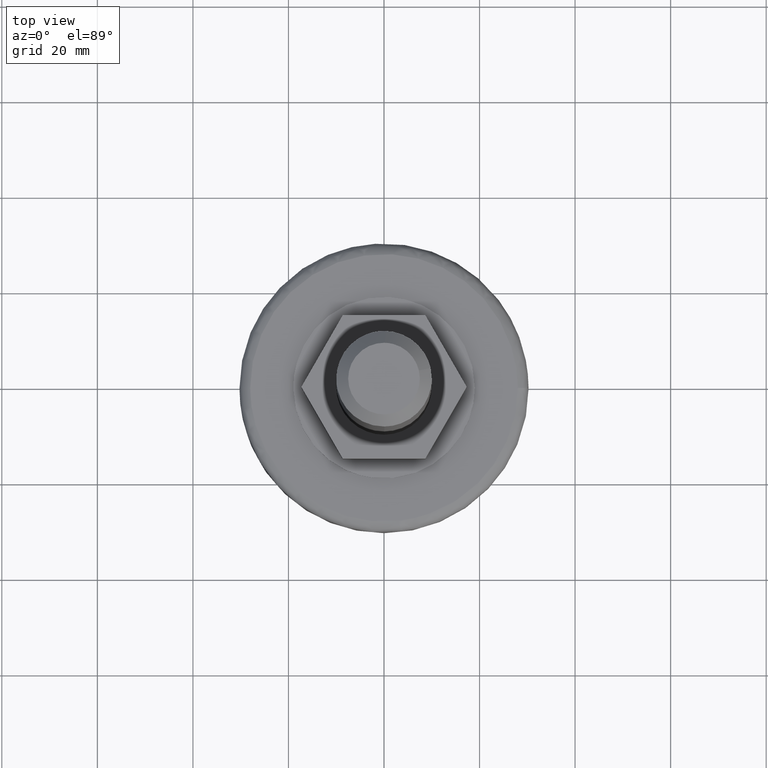
[diagram: clean part render]
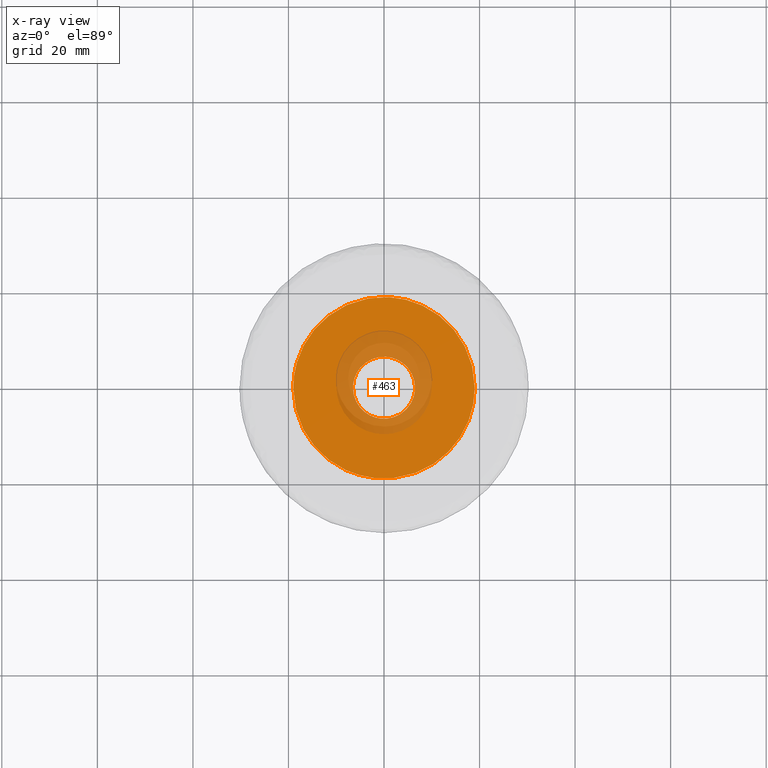
[diagram: x-ray — body ghosted, one internal face saturated and labeled with its STEP entity id]
A machine part, top view, then the same camera in x-ray: the body is ghosted and one INTERNAL B-rep face — a face not visible from any outside direction — is saturated and labeled: STEP entity #463.
In plain terms, the highlighted face is a freeform B-spline surface patch.
Its self-contained STEP definition (entity closure, byte-faithful):
#89=CARTESIAN_POINT('',(-2.242622214212358,-18.867184358125940,16.0));
#90=VERTEX_POINT('',#89);
#96=CARTESIAN_POINT('',(19.0,0.0,16.0));
#97=VERTEX_POINT('',#96);
#98=CARTESIAN_POINT('',(-2.242622214212358,-18.867184358125943,15.999999999999996));
#99=CARTESIAN_POINT('',(-1.125244001959050,-19.0,16.000000000000004));
#100=CARTESIAN_POINT('',(0.0,-19.0,16.0));
#101=CARTESIAN_POINT('',(18.999999999999993,-18.999999999999993,15.999999999999998));
#102=CARTESIAN_POINT('',(19.0,0.0,16.0));
#110=(BOUNDED_CURVE()B_SPLINE_CURVE(2,(#98,#99,#100,#101,#102),.UNSPECIFIED.,.F.,.U.)B_SPLINE_CURVE_WITH_KNOTS((3,2,3),(0.229562726514391,0.250000000000000,0.500000000000000),.UNSPECIFIED.)CURVE()GEOMETRIC_REPRESENTATION_ITEM()RATIONAL_B_SPLINE_CURVE((0.956027250076383,0.976056244740117,1.0,0.707106781186548,1.0))REPRESENTATION_ITEM(''));
#111=EDGE_CURVE('',#90,#97,#110,.T.);
#113=CARTESIAN_POINT('',(1.159886936886149,18.964563329863129,16.0));
#114=VERTEX_POINT('',#113);
#115=CARTESIAN_POINT('',(19.0,0.0,16.0));
#116=CARTESIAN_POINT('',(18.999999999999993,17.873448615860308,15.999999999999998));
#117=CARTESIAN_POINT('',(1.159886936886149,18.964563329863129,15.999999999999996));
#125=(BOUNDED_CURVE()B_SPLINE_CURVE(2,(#115,#116,#117),.UNSPECIFIED.,.F.,.U.)B_SPLINE_CURVE_WITH_KNOTS((3,3),(0.500000000000000,0.739333283544760),.UNSPECIFIED.)CURVE()GEOMETRIC_REPRESENTATION_ITEM()RATIONAL_B_SPLINE_CURVE((1.0,0.719603616853531,0.976072730287213))REPRESENTATION_ITEM(''));
#126=EDGE_CURVE('',#97,#114,#125,.T.);
#204=CARTESIAN_POINT('',(-19.0,0.0,16.0));
#205=VERTEX_POINT('',#204);
#206=CARTESIAN_POINT('',(1.159886936886149,18.964563329863129,15.999999999999996));
#207=CARTESIAN_POINT('',(0.580484796028746,18.999999999999996,16.0));
#208=CARTESIAN_POINT('',(0.0,19.0,16.0));
#209=CARTESIAN_POINT('',(-18.999999999999993,18.999999999999993,15.999999999999998));
#210=CARTESIAN_POINT('',(-19.0,0.0,16.0));
#218=(BOUNDED_CURVE()B_SPLINE_CURVE(2,(#206,#207,#208,#209,#210),.UNSPECIFIED.,.F.,.U.)B_SPLINE_CURVE_WITH_KNOTS((3,2,3),(0.739333283544760,0.750000000000000,1.0),.UNSPECIFIED.)CURVE()GEOMETRIC_REPRESENTATION_ITEM()RATIONAL_B_SPLINE_CURVE((0.976072730287213,0.987503164333017,1.0,0.707106781186548,1.0))REPRESENTATION_ITEM(''));
#219=EDGE_CURVE('',#114,#205,#218,.T.);
#221=CARTESIAN_POINT('',(-19.0,0.0,16.0));
#222=CARTESIAN_POINT('',(-18.999999999999993,-16.875341433361918,15.999999999999995));
#223=CARTESIAN_POINT('',(-2.242622214212358,-18.867184358125943,15.999999999999996));
#231=(BOUNDED_CURVE()B_SPLINE_CURVE(2,(#221,#222,#223),.UNSPECIFIED.,.F.,.U.)B_SPLINE_CURVE_WITH_KNOTS((3,3),(0.0,0.229562726514391),.UNSPECIFIED.)CURVE()GEOMETRIC_REPRESENTATION_ITEM()RATIONAL_B_SPLINE_CURVE((1.0,0.731050536446431,0.956027250076383))REPRESENTATION_ITEM(''));
#232=EDGE_CURVE('',#205,#90,#231,.T.);
#298=CARTESIAN_POINT('',(0.396804058030815,6.487876889969376,16.0));
#299=VERTEX_POINT('',#298);
#305=CARTESIAN_POINT('',(6.500000000000000,0.0,16.0));
#306=VERTEX_POINT('',#305);
#307=CARTESIAN_POINT('',(6.500000000000000,0.0,16.0));
#308=CARTESIAN_POINT('',(6.499999999999999,6.114600245277031,16.000000000000007));
#309=CARTESIAN_POINT('',(0.396804058030815,6.487876889969376,16.000000000000004));
#317=(BOUNDED_CURVE()B_SPLINE_CURVE(2,(#307,#308,#309),.UNSPECIFIED.,.F.,.U.)B_SPLINE_CURVE_WITH_KNOTS((3,3),(0.500000000000000,0.739333266729790),.UNSPECIFIED.)CURVE()GEOMETRIC_REPRESENTATION_ITEM()RATIONAL_B_SPLINE_CURVE((1.0,0.719603636553493,0.976072694249433))REPRESENTATION_ITEM(''));
#318=EDGE_CURVE('',#306,#299,#317,.T.);
#320=CARTESIAN_POINT('',(-0.767222525480639,-6.454561921338667,16.0));
#321=VERTEX_POINT('',#320);
#322=CARTESIAN_POINT('',(-0.767222525480639,-6.454561921338667,16.000000000000004));
#323=CARTESIAN_POINT('',(-0.384956777951362,-6.500000000000000,16.000000000000004));
#324=CARTESIAN_POINT('',(0.0,-6.500000000000000,16.0));
#325=CARTESIAN_POINT('',(6.500000000000000,-6.500000000000000,16.0));
#326=CARTESIAN_POINT('',(6.500000000000000,0.0,16.0));
#334=(BOUNDED_CURVE()B_SPLINE_CURVE(2,(#322,#323,#324,#325,#326),.UNSPECIFIED.,.F.,.U.)B_SPLINE_CURVE_WITH_KNOTS((3,2,3),(0.229562473504558,0.250000000000000,0.500000000000000),.UNSPECIFIED.)CURVE()GEOMETRIC_REPRESENTATION_ITEM()RATIONAL_B_SPLINE_CURVE((0.956026754166156,0.976055948320659,1.0,0.707106781186547,1.0))REPRESENTATION_ITEM(''));
#335=EDGE_CURVE('',#321,#306,#334,.T.);
#379=CARTESIAN_POINT('',(-6.500000000000000,0.0,16.0));
#380=VERTEX_POINT('',#379);
#381=CARTESIAN_POINT('',(-6.500000000000000,0.0,16.0));
#382=CARTESIAN_POINT('',(-6.500000000000000,-5.773134418302506,16.0));
#383=CARTESIAN_POINT('',(-0.767222525480639,-6.454561921338667,16.000000000000004));
#391=(BOUNDED_CURVE()B_SPLINE_CURVE(2,(#381,#382,#383),.UNSPECIFIED.,.F.,.U.)B_SPLINE_CURVE_WITH_KNOTS((3,3),(0.0,0.229562473504558),.UNSPECIFIED.)CURVE()GEOMETRIC_REPRESENTATION_ITEM()RATIONAL_B_SPLINE_CURVE((1.0,0.731050832865889,0.956026754166156))REPRESENTATION_ITEM(''));
#392=EDGE_CURVE('',#380,#321,#391,.T.);
#394=CARTESIAN_POINT('',(0.396804058030815,6.487876889969376,16.000000000000004));
#395=CARTESIAN_POINT('',(0.198587220917858,6.500000000000002,15.999999999999996));
#396=CARTESIAN_POINT('',(0.0,6.500000000000000,16.0));
#397=CARTESIAN_POINT('',(-6.500000000000000,6.500000000000000,16.0));
#398=CARTESIAN_POINT('',(-6.500000000000000,0.0,16.0));
#406=(BOUNDED_CURVE()B_SPLINE_CURVE(2,(#394,#395,#396,#397,#398),.UNSPECIFIED.,.F.,.U.)B_SPLINE_CURVE_WITH_KNOTS((3,2,3),(0.739333266729790,0.750000000000000,1.0),.UNSPECIFIED.)CURVE()GEOMETRIC_REPRESENTATION_ITEM()RATIONAL_B_SPLINE_CURVE((0.976072694249433,0.987503144633054,1.0,0.707106781186547,1.0))REPRESENTATION_ITEM(''));
#407=EDGE_CURVE('',#299,#380,#406,.T.);
#446=CARTESIAN_POINT('',(-20.898099926348628,20.897637839953529,16.0));
#447=CARTESIAN_POINT('',(20.898100945588052,20.897637839953529,16.0));
#448=CARTESIAN_POINT('',(-20.898099926348628,-20.897754372994530,16.0));
#449=CARTESIAN_POINT('',(20.898100945588052,-20.897754372994530,16.0));
#450=B_SPLINE_SURFACE_WITH_KNOTS('',1,1,((#446,#448),(#447,#449)),.UNSPECIFIED.,.F.,.F.,.U.,(2,2),(2,2),(0.0,41.796200871936684),(0.0,41.795392212948052),.UNSPECIFIED.);
#451=ORIENTED_EDGE('',*,*,#219,.F.);
#452=ORIENTED_EDGE('',*,*,#126,.F.);
#453=ORIENTED_EDGE('',*,*,#111,.F.);
#454=ORIENTED_EDGE('',*,*,#232,.F.);
#455=EDGE_LOOP('',(#451,#452,#453,#454));
#456=FACE_OUTER_BOUND('',#455,.T.);
#457=ORIENTED_EDGE('',*,*,#318,.T.);
#458=ORIENTED_EDGE('',*,*,#407,.T.);
#459=ORIENTED_EDGE('',*,*,#392,.T.);
#460=ORIENTED_EDGE('',*,*,#335,.T.);
#461=EDGE_LOOP('',(#457,#458,#459,#460));
#462=FACE_BOUND('',#461,.T.);
#463=ADVANCED_FACE('',(#456,#462),#450,.T.);